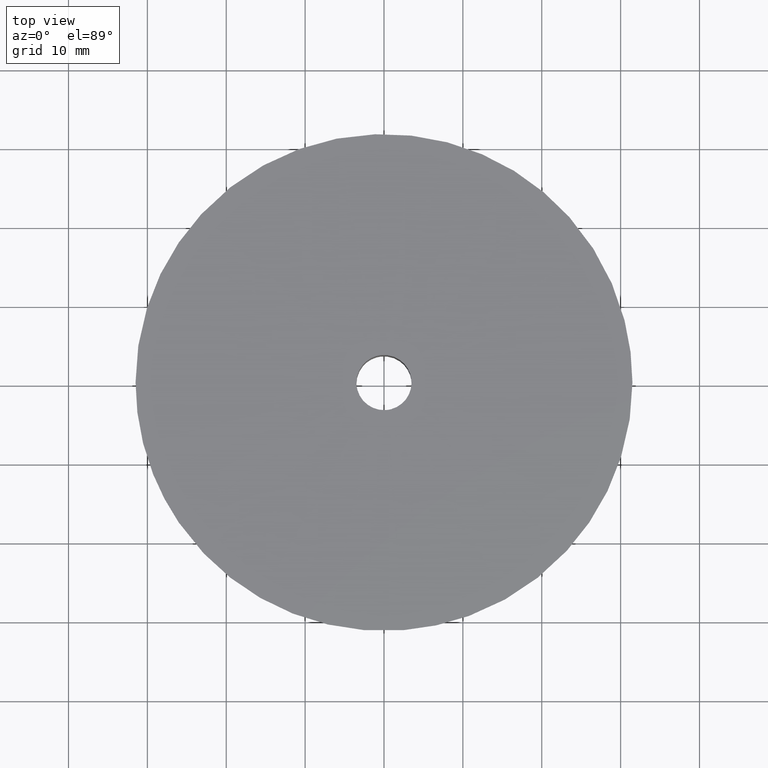
[diagram: clean part render]
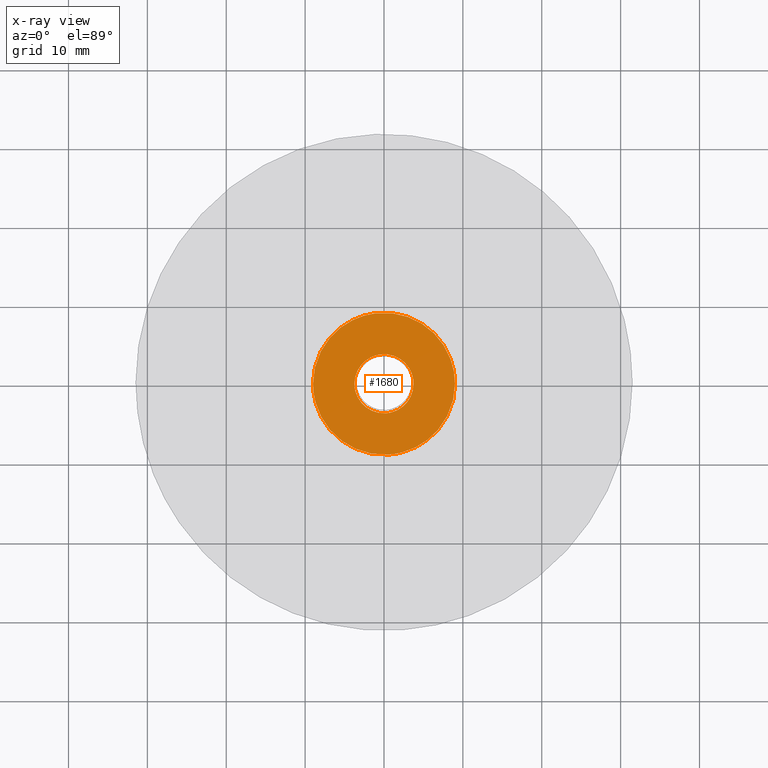
[diagram: x-ray — body ghosted, one internal face saturated and labeled with its STEP entity id]
A machine part, top view, then the same camera in x-ray: the body is ghosted and one INTERNAL B-rep face — a face not visible from any outside direction — is saturated and labeled: STEP entity #1680.
In plain terms, the highlighted face is a freeform B-spline surface patch.
Its self-contained STEP definition (entity closure, byte-faithful):
#1122=CARTESIAN_POINT('',(-0.442628380085472,3.723785723849173,16.600000000000001));
#1123=VERTEX_POINT('',#1122);
#1129=CARTESIAN_POINT('',(3.750000000000000,0.0,16.600000000000001));
#1130=VERTEX_POINT('',#1129);
#1131=CARTESIAN_POINT('',(-0.442628380085472,3.723785723849173,16.600000000000009));
#1132=CARTESIAN_POINT('',(-0.222090448818586,3.750000000000000,16.600000000000009));
#1133=CARTESIAN_POINT('',(0.0,3.750000000000000,16.600000000000001));
#1134=CARTESIAN_POINT('',(3.750000000000000,3.750000000000000,16.600000000000005));
#1135=CARTESIAN_POINT('',(3.750000000000000,0.0,16.600000000000001));
#1143=(BOUNDED_CURVE()B_SPLINE_CURVE(2,(#1131,#1132,#1133,#1134,#1135),.UNSPECIFIED.,.F.,.U.)B_SPLINE_CURVE_WITH_KNOTS((3,2,3),(0.229562473504513,0.250000000000000,0.500000000000000),.UNSPECIFIED.)CURVE()GEOMETRIC_REPRESENTATION_ITEM()RATIONAL_B_SPLINE_CURVE((0.956026754166069,0.976055948320607,1.0,0.707106781186547,1.0))REPRESENTATION_ITEM(''));
#1144=EDGE_CURVE('',#1123,#1130,#1143,.T.);
#1146=CARTESIAN_POINT('',(0.228932023283435,-3.743005494080305,16.600000000000001));
#1147=VERTEX_POINT('',#1146);
#1148=CARTESIAN_POINT('',(3.750000000000000,0.0,16.600000000000001));
#1149=CARTESIAN_POINT('',(3.750000000000000,-3.527647750844029,16.599999999999994));
#1150=CARTESIAN_POINT('',(0.228932023283435,-3.743005494080305,16.600000000000001));
#1158=(BOUNDED_CURVE()B_SPLINE_CURVE(2,(#1148,#1149,#1150),.UNSPECIFIED.,.F.,.U.)B_SPLINE_CURVE_WITH_KNOTS((3,3),(0.500000000000000,0.739332962239414),.UNSPECIFIED.)CURVE()GEOMETRIC_REPRESENTATION_ITEM()RATIONAL_B_SPLINE_CURVE((1.0,0.719603993286159,0.976072041667726))REPRESENTATION_ITEM(''));
#1159=EDGE_CURVE('',#1130,#1147,#1158,.T.);
#1233=CARTESIAN_POINT('',(-3.750000000000000,0.0,16.600000000000001));
#1234=VERTEX_POINT('',#1233);
#1235=CARTESIAN_POINT('',(0.228932023283435,-3.743005494080306,16.600000000000001));
#1236=CARTESIAN_POINT('',(0.114572862397507,-3.750000000000000,16.599999999999998));
#1237=CARTESIAN_POINT('',(0.0,-3.750000000000000,16.600000000000001));
#1238=CARTESIAN_POINT('',(-3.750000000000000,-3.750000000000000,16.600000000000005));
#1239=CARTESIAN_POINT('',(-3.750000000000000,0.0,16.600000000000001));
#1247=(BOUNDED_CURVE()B_SPLINE_CURVE(2,(#1235,#1236,#1237,#1238,#1239),.UNSPECIFIED.,.F.,.U.)B_SPLINE_CURVE_WITH_KNOTS((3,2,3),(0.739332962239412,0.750000000000000,1.0),.UNSPECIFIED.)CURVE()GEOMETRIC_REPRESENTATION_ITEM()RATIONAL_B_SPLINE_CURVE((0.976072041667724,0.987502787900387,1.0,0.707106781186547,1.0))REPRESENTATION_ITEM(''));
#1248=EDGE_CURVE('',#1147,#1234,#1247,.T.);
#1250=CARTESIAN_POINT('',(-3.750000000000000,0.0,16.600000000000001));
#1251=CARTESIAN_POINT('',(-3.750000000000000,3.330654472096721,16.600000000000005));
#1252=CARTESIAN_POINT('',(-0.442628380085471,3.723785723849173,16.599999999999998));
#1260=(BOUNDED_CURVE()B_SPLINE_CURVE(2,(#1250,#1251,#1252),.UNSPECIFIED.,.F.,.U.)B_SPLINE_CURVE_WITH_KNOTS((3,3),(0.0,0.229562473504513),.UNSPECIFIED.)CURVE()GEOMETRIC_REPRESENTATION_ITEM()RATIONAL_B_SPLINE_CURVE((1.0,0.731050832865941,0.956026754166069))REPRESENTATION_ITEM(''));
#1261=EDGE_CURVE('',#1234,#1123,#1260,.T.);
#1289=CARTESIAN_POINT('',(-1.062308111962488,8.937085737266855,16.600000000000001));
#1290=VERTEX_POINT('',#1289);
#1291=CARTESIAN_POINT('',(9.0,0.0,16.600000000000001));
#1292=VERTEX_POINT('',#1291);
#1293=CARTESIAN_POINT('',(-1.062308111962488,8.937085737266855,16.600000000000001));
#1294=CARTESIAN_POINT('',(-0.533017076919399,9.0,16.600000000000005));
#1295=CARTESIAN_POINT('',(0.0,9.0,16.600000000000001));
#1296=CARTESIAN_POINT('',(9.0,9.0,16.600000000000005));
#1297=CARTESIAN_POINT('',(9.0,0.0,16.600000000000001));
#1305=(BOUNDED_CURVE()B_SPLINE_CURVE(2,(#1293,#1294,#1295,#1296,#1297),.UNSPECIFIED.,.F.,.U.)B_SPLINE_CURVE_WITH_KNOTS((3,2,3),(0.229562473513690,0.250000000000000,0.500000000000000),.UNSPECIFIED.)CURVE()GEOMETRIC_REPRESENTATION_ITEM()RATIONAL_B_SPLINE_CURVE((0.956026754184056,0.976055948331358,1.0,0.707106781186547,1.0))REPRESENTATION_ITEM(''));
#1306=EDGE_CURVE('',#1290,#1292,#1305,.T.);
#1347=CARTESIAN_POINT('',(0.549433041448450,-8.983213419091749,16.600000000000112));
#1348=VERTEX_POINT('',#1347);
#1354=CARTESIAN_POINT('',(9.0,0.0,16.600000000000001));
#1355=CARTESIAN_POINT('',(9.0,-8.466358203771383,16.599999999999994));
#1356=CARTESIAN_POINT('',(0.549433041448450,-8.983213419091749,16.600000000000101));
#1364=(BOUNDED_CURVE()B_SPLINE_CURVE(2,(#1354,#1355,#1356),.UNSPECIFIED.,.F.,.U.)B_SPLINE_CURVE_WITH_KNOTS((3,3),(0.500000000000000,0.739333035507124),.UNSPECIFIED.)CURVE()GEOMETRIC_REPRESENTATION_ITEM()RATIONAL_B_SPLINE_CURVE((1.0,0.719603907447696,0.976072198694428))REPRESENTATION_ITEM(''));
#1365=EDGE_CURVE('',#1292,#1348,#1364,.T.);
#1388=CARTESIAN_POINT('',(-9.0,0.0,16.600000000000001));
#1389=VERTEX_POINT('',#1388);
#1390=CARTESIAN_POINT('',(-9.0,0.0,16.600000000000001));
#1391=CARTESIAN_POINT('',(-9.0,7.993570733469241,16.599999999999998));
#1392=CARTESIAN_POINT('',(-1.062308111962488,8.937085737266855,16.600000000000001));
#1400=(BOUNDED_CURVE()B_SPLINE_CURVE(2,(#1390,#1391,#1392),.UNSPECIFIED.,.F.,.U.)B_SPLINE_CURVE_WITH_KNOTS((3,3),(0.0,0.229562473513690),.UNSPECIFIED.)CURVE()GEOMETRIC_REPRESENTATION_ITEM()RATIONAL_B_SPLINE_CURVE((1.0,0.731050832855189,0.956026754184056))REPRESENTATION_ITEM(''));
#1401=EDGE_CURVE('',#1389,#1290,#1400,.T.);
#1403=CARTESIAN_POINT('',(0.549433041448450,-8.983213419091749,16.600000000000101));
#1404=CARTESIAN_POINT('',(0.274972957157177,-9.0,16.600000000000005));
#1405=CARTESIAN_POINT('',(0.0,-9.0,16.600000000000001));
#1406=CARTESIAN_POINT('',(-9.0,-9.0,16.600000000000005));
#1407=CARTESIAN_POINT('',(-9.0,0.0,16.600000000000001));
#1415=(BOUNDED_CURVE()B_SPLINE_CURVE(2,(#1403,#1404,#1405,#1406,#1407),.UNSPECIFIED.,.F.,.U.)B_SPLINE_CURVE_WITH_KNOTS((3,2,3),(0.739333035507124,0.750000000000000,1.0),.UNSPECIFIED.)CURVE()GEOMETRIC_REPRESENTATION_ITEM()RATIONAL_B_SPLINE_CURVE((0.976072198694428,0.987502873738851,1.0,0.707106781186547,1.0))REPRESENTATION_ITEM(''));
#1416=EDGE_CURVE('',#1348,#1389,#1415,.T.);
#1663=CARTESIAN_POINT('',(-9.899099965112507,-9.898881420025489,16.600000000000001));
#1664=CARTESIAN_POINT('',(9.899100447910129,-9.898881420025489,16.600000000000001));
#1665=CARTESIAN_POINT('',(-9.899099965112507,9.898936298021937,16.600000000000001));
#1666=CARTESIAN_POINT('',(9.899100447910129,9.898936298021937,16.600000000000001));
#1667=B_SPLINE_SURFACE_WITH_KNOTS('',1,1,((#1663,#1665),(#1664,#1666)),.UNSPECIFIED.,.F.,.F.,.U.,(2,2),(2,2),(0.0,19.798200413022631),(0.0,19.797817718047430),.UNSPECIFIED.);
#1668=ORIENTED_EDGE('',*,*,#1401,.T.);
#1669=ORIENTED_EDGE('',*,*,#1306,.T.);
#1670=ORIENTED_EDGE('',*,*,#1365,.T.);
#1671=ORIENTED_EDGE('',*,*,#1416,.T.);
#1672=EDGE_LOOP('',(#1668,#1669,#1670,#1671));
#1673=FACE_OUTER_BOUND('',#1672,.T.);
#1674=ORIENTED_EDGE('',*,*,#1159,.F.);
#1675=ORIENTED_EDGE('',*,*,#1144,.F.);
#1676=ORIENTED_EDGE('',*,*,#1261,.F.);
#1677=ORIENTED_EDGE('',*,*,#1248,.F.);
#1678=EDGE_LOOP('',(#1674,#1675,#1676,#1677));
#1679=FACE_BOUND('',#1678,.T.);
#1680=ADVANCED_FACE('',(#1673,#1679),#1667,.F.);